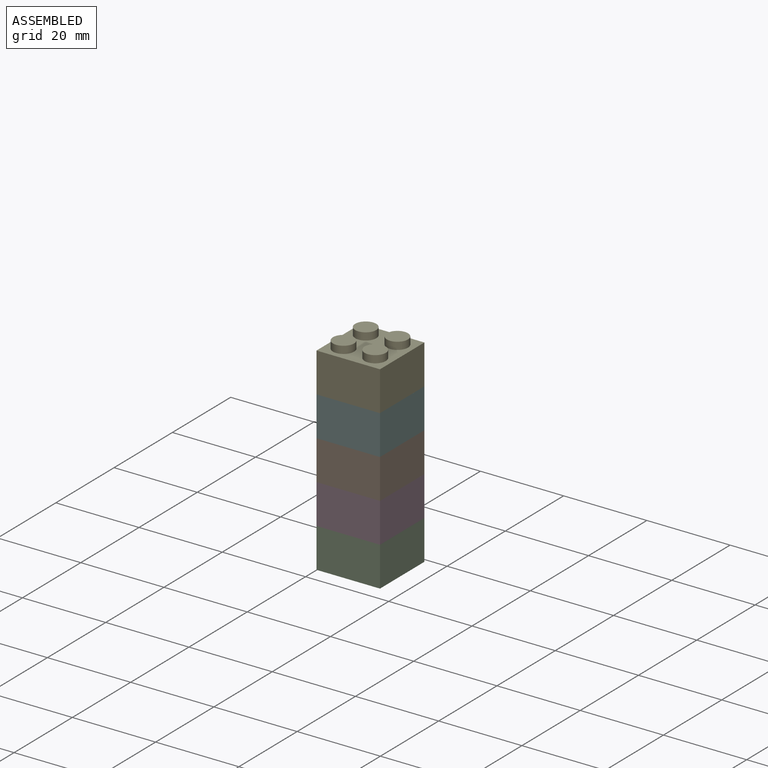
[diagram: assembled view]
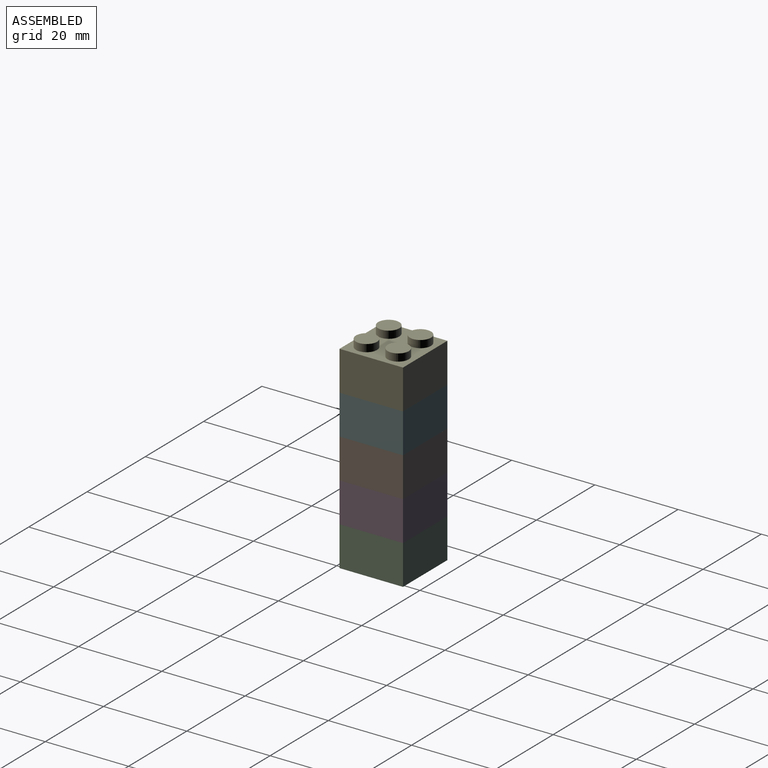
[diagram: assembled view, second angle]
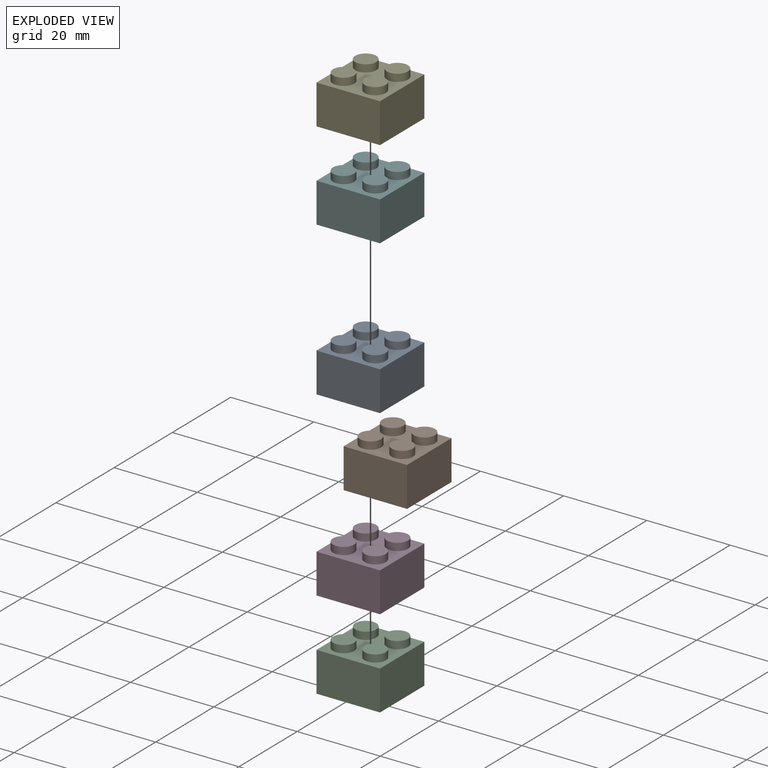
[diagram: exploded view]
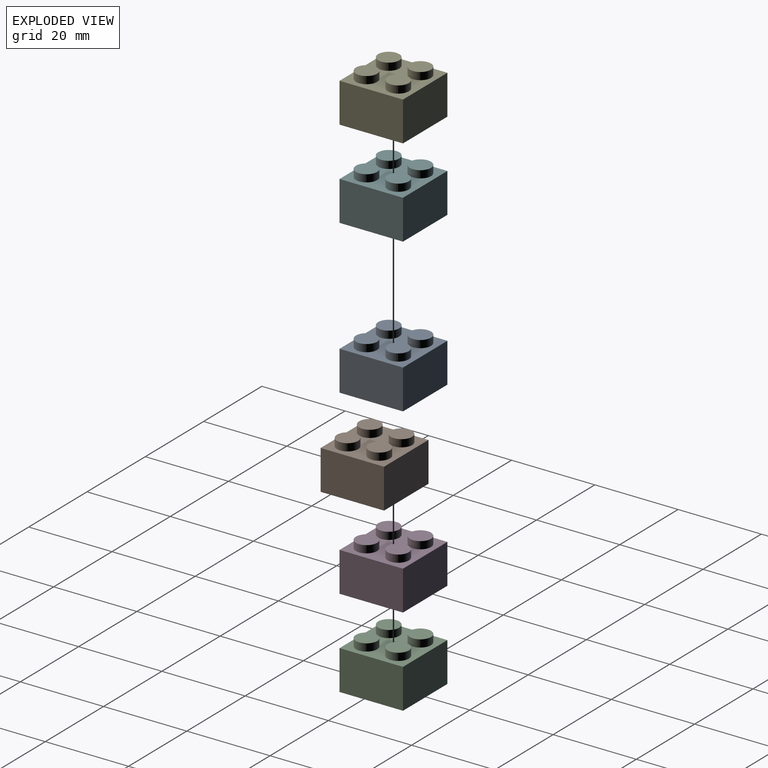
[diagram: exploded view, second angle]
ASSEMBLY  parts=6 mates=4
PART A: 55 faces, bbox 15.2x15.2x11.3 mm
  f0: plane 7.62x1.27mm, normal (0,1,0), area 9.7mm2, adj f1,f7,f9,f53
  f1: plane 12.7x12.7mm, normal (0,0,-1), area 127.6mm2, adj f0,f2,f3,f4,f5,f6,f7,f8
  f2: plane 9.14x7.62mm, normal (0,1,0), area 69.7mm2, adj f1,f9,f50,f52
  f3: plane 7.62x1.27mm, normal (-1,0,0), area 9.7mm2, adj f1,f9,f25,f47
  f4: plane 9.14x7.62mm, normal (-1,0,0), area 69.7mm2, adj f1,f9,f44,f46
  f5: plane 9.14x7.62mm, normal (0,-1,0), area 69.7mm2, adj f1,f9,f38,f40
  f6: plane 7.62x1.27mm, normal (0,-1,0), area 9.7mm2, adj f1,f9,f26,f37
  f7: plane 7.62x1.27mm, normal (1,0,0), area 9.7mm2, adj f0,f1,f9,f34
  f8: plane 9.14x7.62mm, normal (1,0,0), area 69.7mm2, adj f1,f9,f33,f35
  f9: plane 15.24x15.24mm, normal (0,0,-1), area 73mm2, adj f0,f2,f3,f4,f5,f6,f7,f8
  f10: plane 15.24x9.53mm, normal (0,-1,0), area 145.2mm2, adj f9,f11,f13,f14
  f11: plane 15.24x9.53mm, normal (1,0,0), area 145.2mm2, adj f9,f10,f12,f14
  f12: plane 15.24x9.53mm, normal (0,1,0), area 145.2mm2, adj f9,f11,f13,f14
  f13: plane 15.24x9.53mm, normal (-1,0,0), area 145.2mm2, adj f9,f10,f12,f14
  f14: plane 15.24x15.24mm, normal (0,0,1), area 151.2mm2, adj f10,f11,f12,f13,f15,f17,f19,f21
  f15: cylinder r=2.54mm len=5.08mm, axis (0,0,-1), area 28.4mm2, adj f14,f16
  f16: plane 5.08x5.08mm, normal (0,0,1), area 20.3mm2, adj f15
  f17: cylinder r=2.54mm len=5.08mm, axis (0,0,-1), area 28.4mm2, adj f14,f18
  f18: plane 5.08x5.08mm, normal (0,0,1), area 20.3mm2, adj f17
  f19: cylinder r=2.54mm len=5.08mm, axis (0,0,-1), area 28.4mm2, adj f14,f20
  f20: plane 5.08x5.08mm, normal (0,0,1), area 20.3mm2, adj f19
  f21: cylinder r=2.54mm len=5.08mm, axis (0,0,-1), area 28.4mm2, adj f14,f22
  f22: plane 5.08x5.08mm, normal (0,0,1), area 20.3mm2, adj f21
  f23: plane 7.62x1.27mm, normal (0,-1,0), area 9.7mm2, adj f1,f9,f24,f41
  f24: plane 7.62x1.27mm, normal (-1,0,0), area 9.7mm2, adj f1,f9,f23,f43
  f25: plane 7.62x1.27mm, normal (0,1,0), area 9.7mm2, adj f1,f3,f9,f49
  f26: plane 7.62x1.27mm, normal (1,0,0), area 9.7mm2, adj f1,f6,f9,f31
  f27: cylinder r=2.54mm len=7.62mm, axis (0,0,1), area 121.6mm2, adj f29,f30
  f28: cylinder r=3.17mm len=7.62mm, axis (0,0,1), area 152mm2, adj f1,f29
  f29: plane 6.35x6.35mm, normal (0,0,-1), area 11.4mm2, adj f27,f28
  f30: plane 5.08x5.08mm, normal (0,0,-1), area 20.3mm2, adj f27
  f31: plane 7.62x0.51mm, normal (0,1,0), area 3.9mm2, adj f1,f9,f26,f32
  f32: plane 7.62x0.51mm, normal (1,0,0), area 3.9mm2, adj f1,f9,f31,f33
  f33: plane 7.62x0.51mm, normal (0,-1,0), area 3.9mm2, adj f1,f8,f9,f32
  f34: plane 7.62x0.51mm, normal (0,-1,0), area 3.9mm2, adj f1,f7,f9,f36
  f35: plane 7.62x0.51mm, normal (0,1,0), area 3.9mm2, adj f1,f8,f9,f36
  f36: plane 7.62x0.51mm, normal (1,0,0), area 3.9mm2, adj f1,f9,f34,f35
  f37: plane 7.62x0.51mm, normal (-1,0,0), area 3.9mm2, adj f1,f6,f9,f39
  f38: plane 7.62x0.51mm, normal (1,0,0), area 3.9mm2, adj f1,f5,f9,f39
  f39: plane 7.62x0.51mm, normal (0,-1,0), area 3.9mm2, adj f1,f9,f37,f38
  f40: plane 7.62x0.51mm, normal (-1,0,0), area 3.9mm2, adj f1,f5,f9,f42
  f41: plane 7.62x0.51mm, normal (1,0,0), area 3.9mm2, adj f1,f9,f23,f42
  f42: plane 7.62x0.51mm, normal (0,-1,0), area 3.9mm2, adj f1,f9,f40,f41
  f43: plane 7.62x0.51mm, normal (0,1,0), area 3.9mm2, adj f1,f9,f24,f45
  f44: plane 7.62x0.51mm, normal (0,-1,0), area 3.9mm2, adj f1,f4,f9,f45
  f45: plane 7.62x0.51mm, normal (-1,0,0), area 3.9mm2, adj f1,f9,f43,f44
  f46: plane 7.62x0.51mm, normal (0,1,0), area 3.9mm2, adj f1,f4,f9,f48
  f47: plane 7.62x0.51mm, normal (0,-1,0), area 3.9mm2, adj f1,f3,f9,f48
  f48: plane 7.62x0.51mm, normal (-1,0,0), area 3.9mm2, adj f1,f9,f46,f47
  f49: plane 7.62x0.51mm, normal (1,0,0), area 3.9mm2, adj f1,f9,f25,f51
  f50: plane 7.62x0.51mm, normal (-1,0,0), area 3.9mm2, adj f1,f2,f9,f51
  f51: plane 7.62x0.51mm, normal (0,1,0), area 3.9mm2, adj f1,f9,f49,f50
  f52: plane 7.62x0.51mm, normal (1,0,0), area 3.9mm2, adj f1,f2,f9,f54
  f53: plane 7.62x0.51mm, normal (-1,0,0), area 3.9mm2, adj f0,f1,f9,f54
  f54: plane 7.62x0.51mm, normal (0,1,0), area 3.9mm2, adj f1,f9,f52,f53
PART B: same geometry as A
PART C: same geometry as A
PART D: same geometry as A
PART E: same geometry as A
PART F: same geometry as A
PLACE A t=(-18.35,2.81,14.46)mm
PLACE B t=(-18.35,2.81,-4.59)mm
PLACE C t=(-18.35,2.81,-23.64)mm
PLACE D t=(-18.35,2.81,-14.12)mm
PLACE E t=(-18.35,2.81,14.46)mm
PLACE F t=(-18.35,2.81,4.93)mm
MATE fastened B.f27 <-> D.f28  axis (0,0,-1) through (-18.35,2.81,-4.59)mm
MATE fastened F.f28 <-> E.f27  axis (0,0,1) through (-18.35,2.81,14.46)mm
MATE fastened F.f27 <-> B.f28  axis (0,0,1) through (-18.35,2.81,4.93)mm
MATE fastened D.f27 <-> C.f28  axis (0,0,1) through (-18.35,2.81,-14.12)mm
